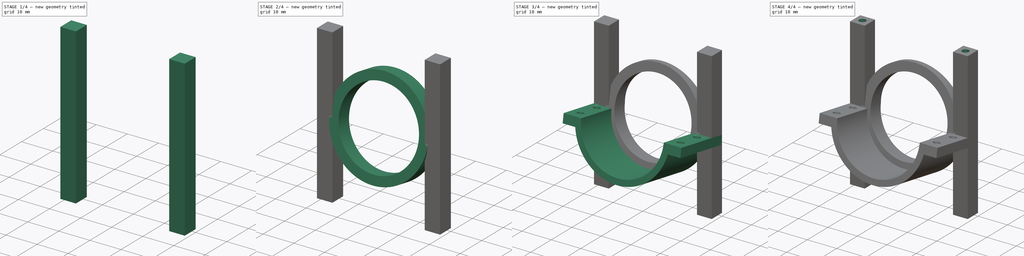
[diagram: build sequence overview — one tinted view per stage of 4, left to right]
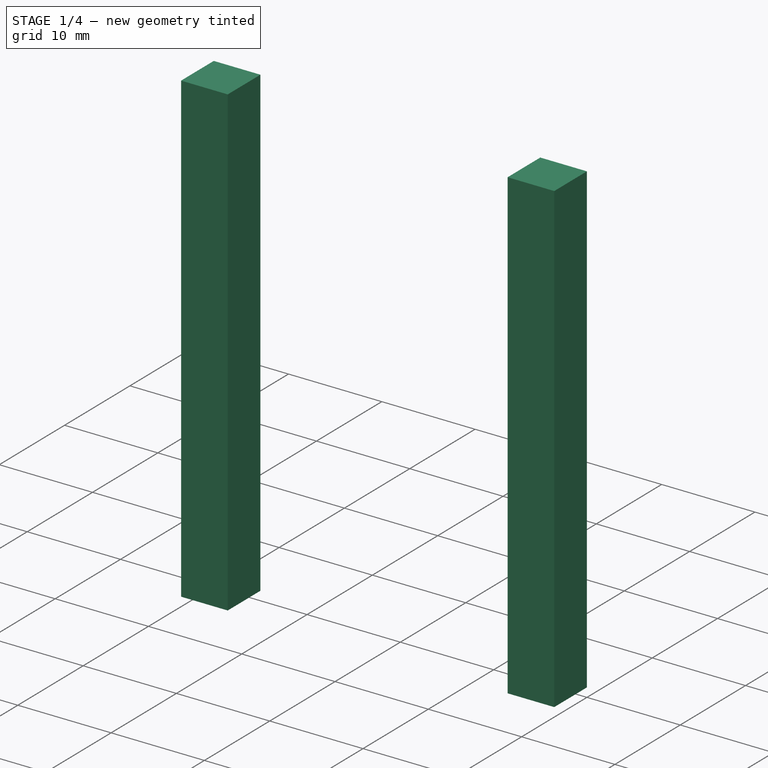
[diagram: stage 1 of 4 — iso view after this stage's code; geometry added in this stage tinted green]
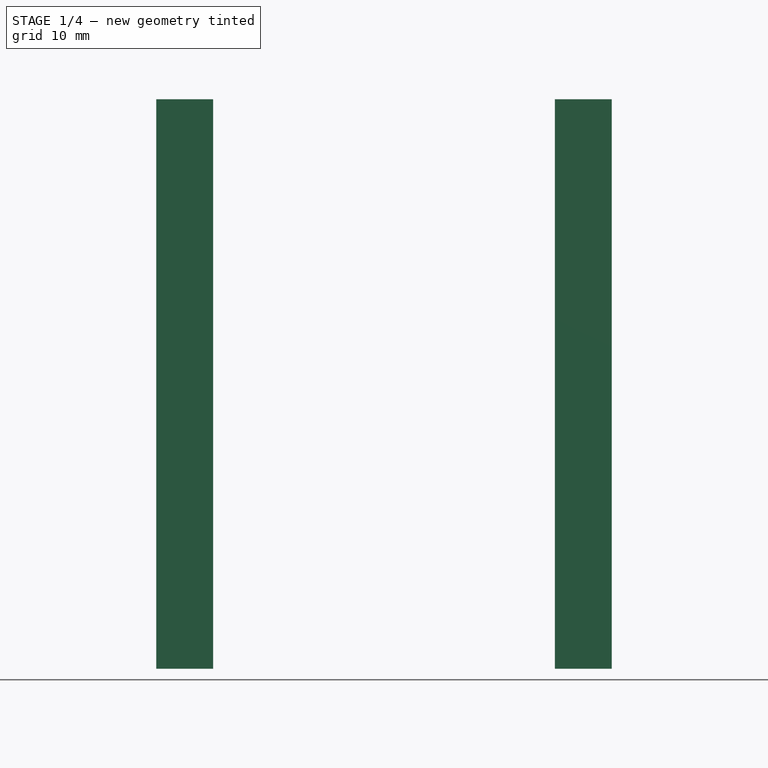
[diagram: stage 1 of 4 — front view after this stage's code; geometry added in this stage tinted green]
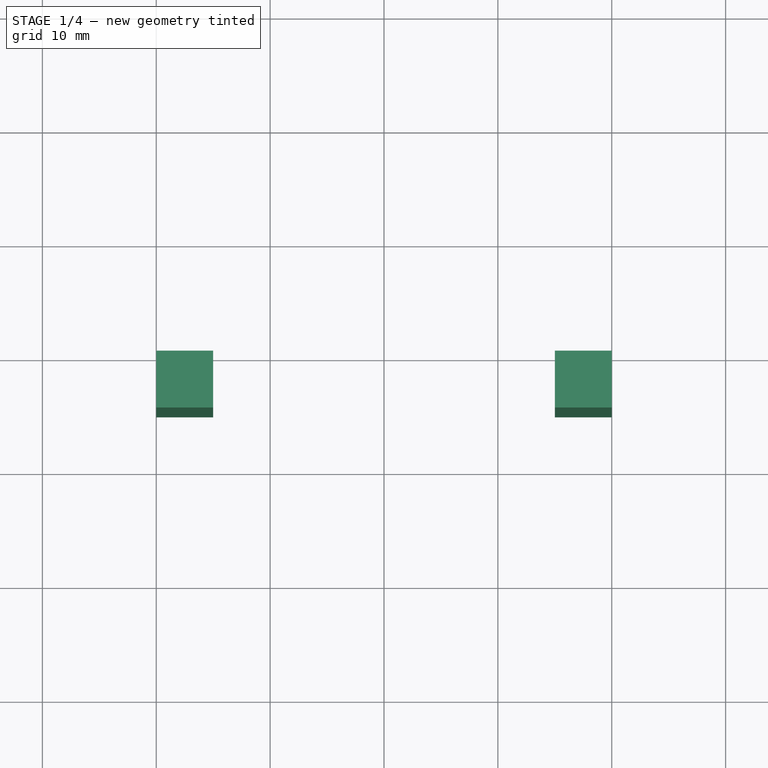
[diagram: stage 1 of 4 — top view after this stage's code; geometry added in this stage tinted green]
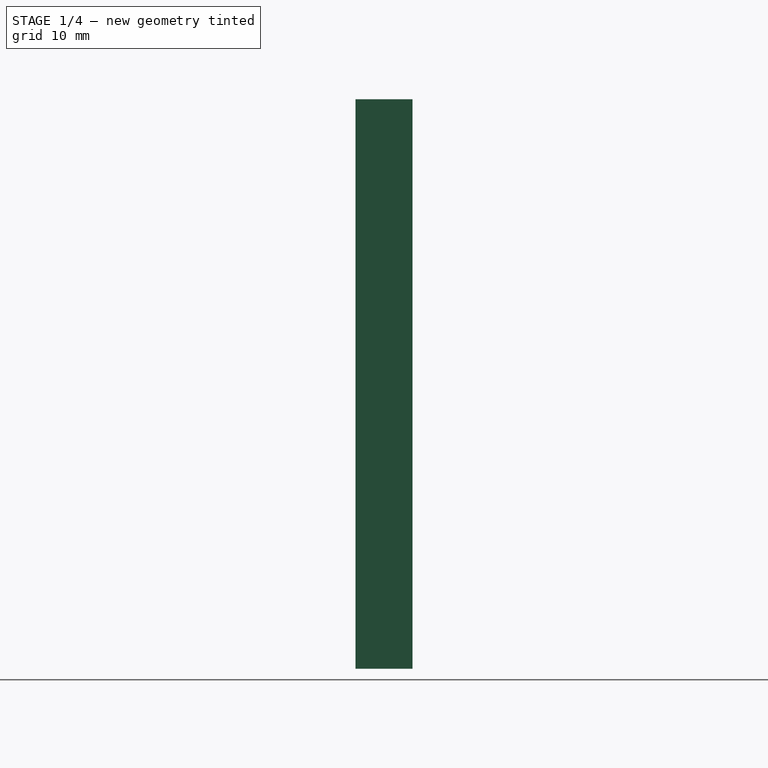
[diagram: stage 1 of 4 — right view after this stage's code; geometry added in this stage tinted green]
FCSTD DOCUMENT  (FreeCAD 0.15R4671 (Git))
Label: H_hub
License: All rights reserved
LicenseURL: http://en.wikipedia.org/wiki/All_rights_reserved
objects: Sketcher::SketchObject×5, PartDesign::Pocket×4, Part::Box×2, Part::MultiFuse×2, Part::Cylinder×1, PartDesign::Pad×1
note: 20 computed .brp shape members not serialized (recipe doc carries the construction recipe); baked Part::Feature solids carry a one-line shape summary decoded from their .brp

FEATURE [Part::Box] Box  label="Cube"
  Height = 50
  Length = 5
  Placement = pos=(15,-5,-25) rot=(0,0,1;0rad)
  Width = 5
FEATURE [Part::Box] Box001  label="Cube001"
  Height = 50
  Length = 5
  Placement = pos=(-20,-5,-25) rot=(0,0,1;0rad)
  Width = 5
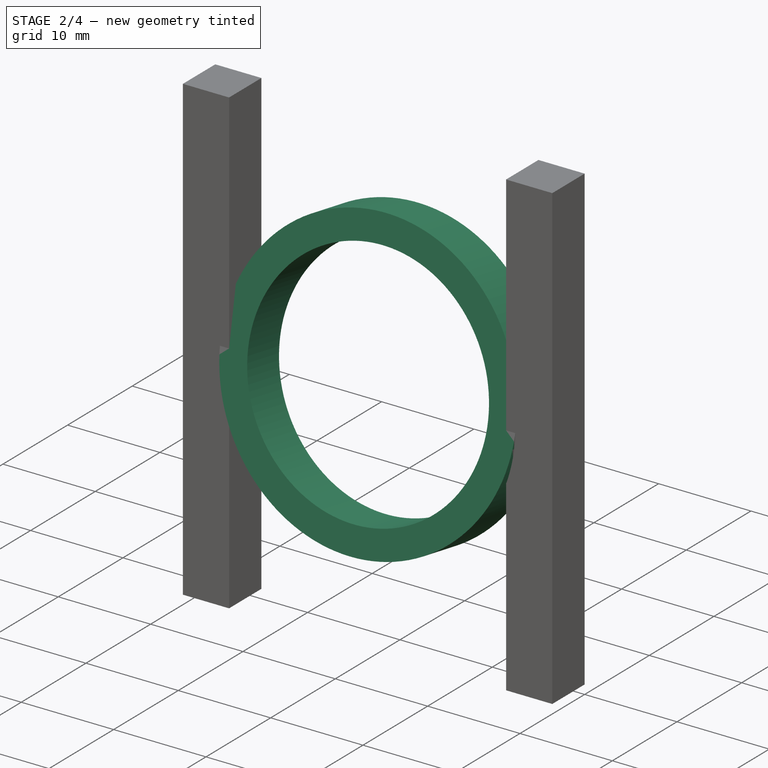
[diagram: stage 2 of 4 — iso view after this stage's code; geometry added in this stage tinted green]
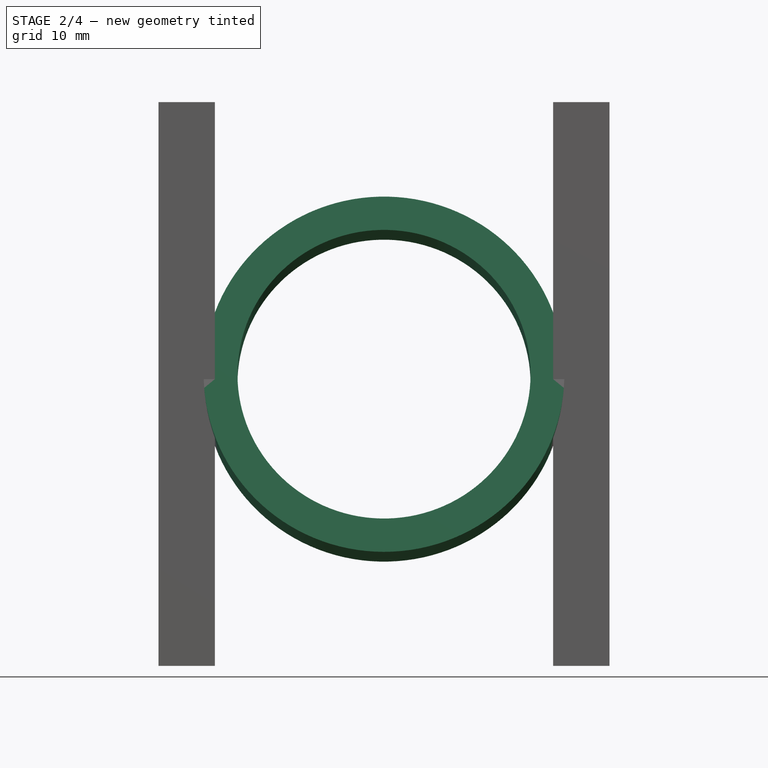
[diagram: stage 2 of 4 — front view after this stage's code; geometry added in this stage tinted green]
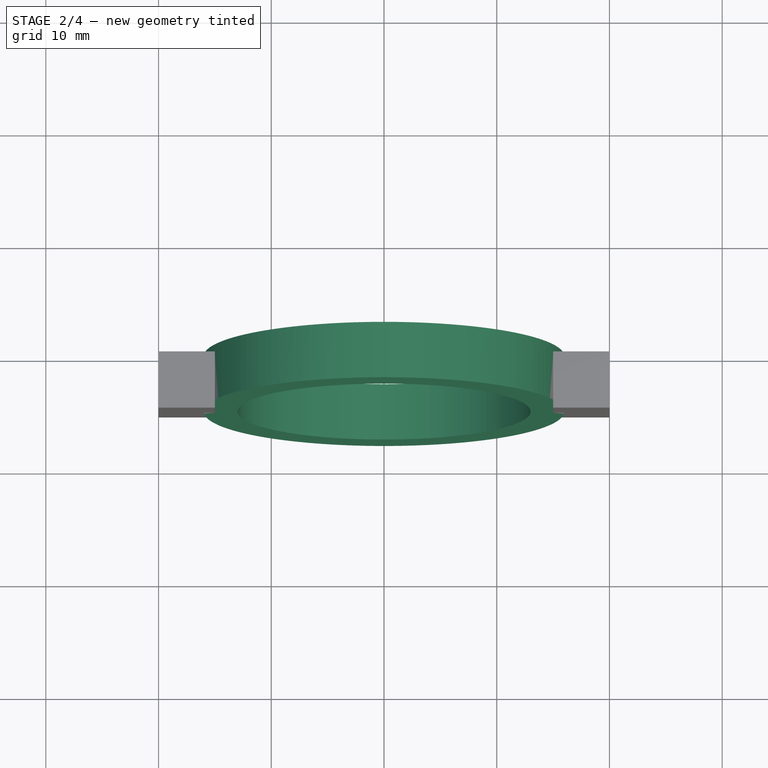
[diagram: stage 2 of 4 — top view after this stage's code; geometry added in this stage tinted green]
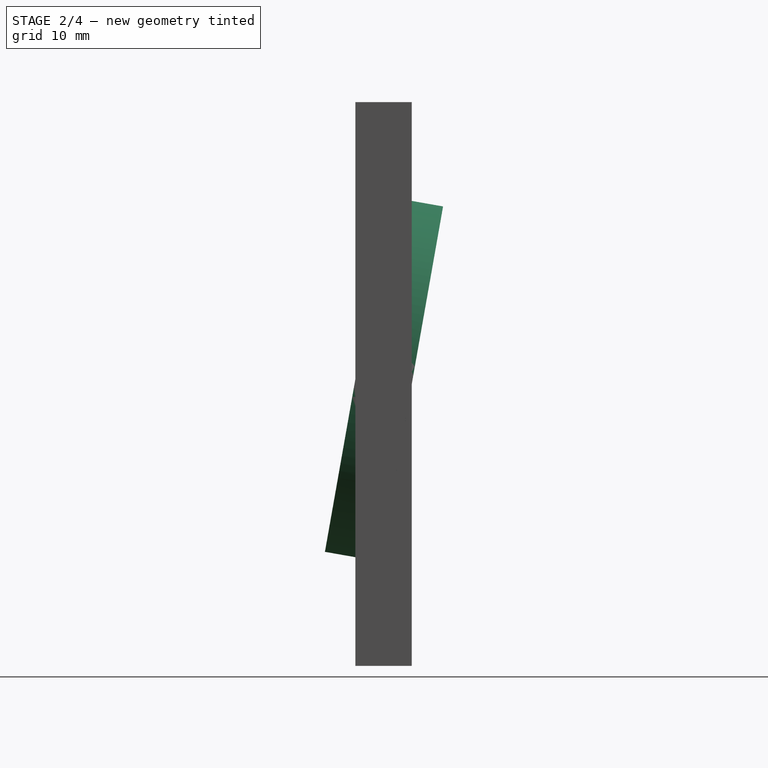
[diagram: stage 2 of 4 — right view after this stage's code; geometry added in this stage tinted green]
FEATURE [Part::Cylinder] Cylinder
  Angle = 360
  Height = 5
  Placement = pos=(0,0,0) rot=(1,0,0;1.39626rad)
  Radius = 16
FEATURE [Part::MultiFuse] Fusion
  Shapes = -> [Cylinder,Box,Box001]
FEATURE [Sketcher::SketchObject] Sketch
  Placement = pos=(0,-4.92404,0.868241) rot=(1,0,0;1.39626rad)
  Support = -> Fusion [Face8]
  sketch-geometry (1):
    g0: Circle CenterX=0 CenterY=0 CenterZ=0 NormalX=0 NormalY=0 NormalZ=1 Radius=13
  constraints (2):
    c: Coincident(g0,g-1)
    c: Radius(g0) = 13
FEATURE [PartDesign::Pocket] Pocket
  Length = 5
  Sketch = -> Sketch
  Type = 1
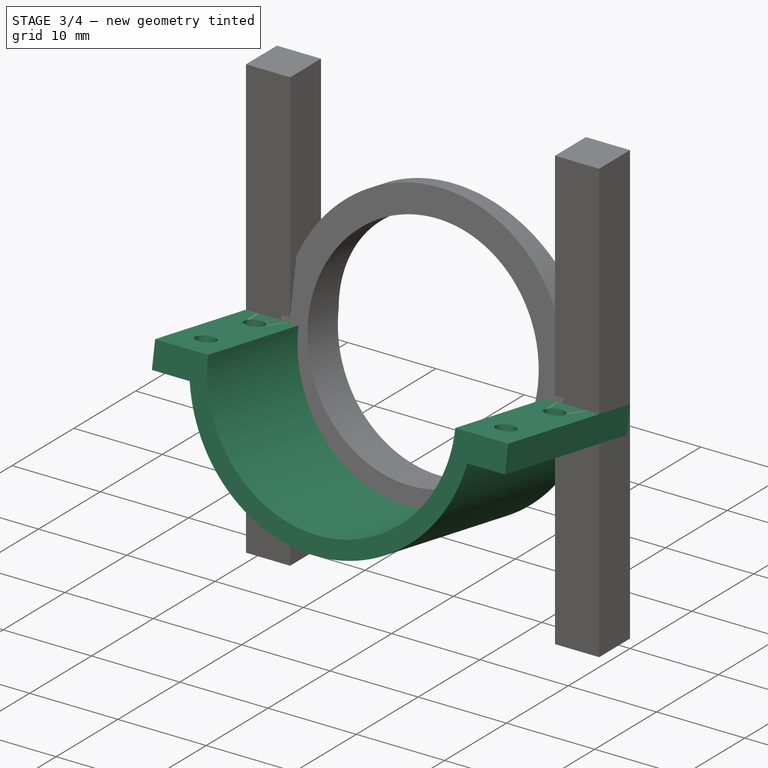
[diagram: stage 3 of 4 — iso view after this stage's code; geometry added in this stage tinted green]
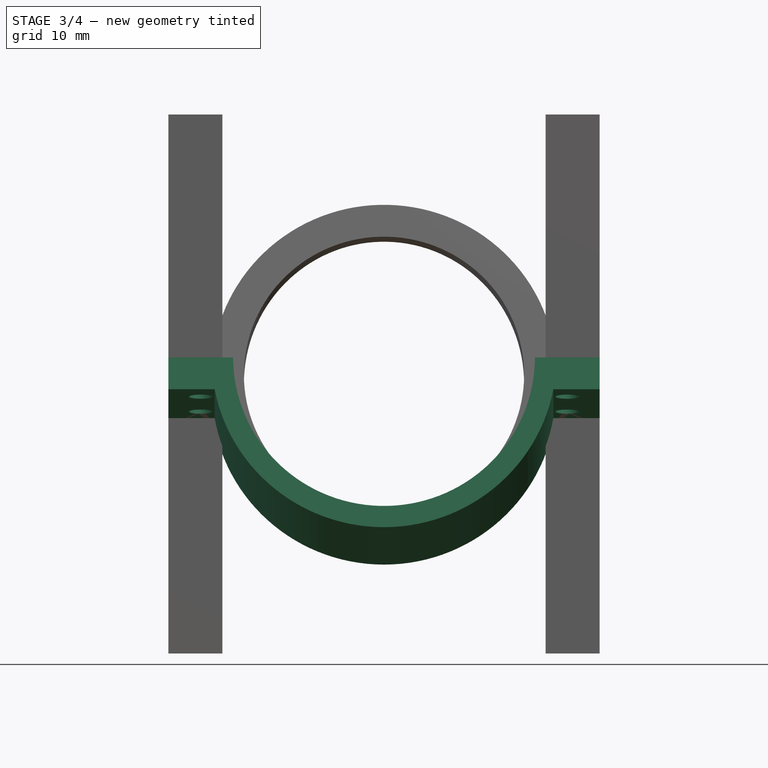
[diagram: stage 3 of 4 — front view after this stage's code; geometry added in this stage tinted green]
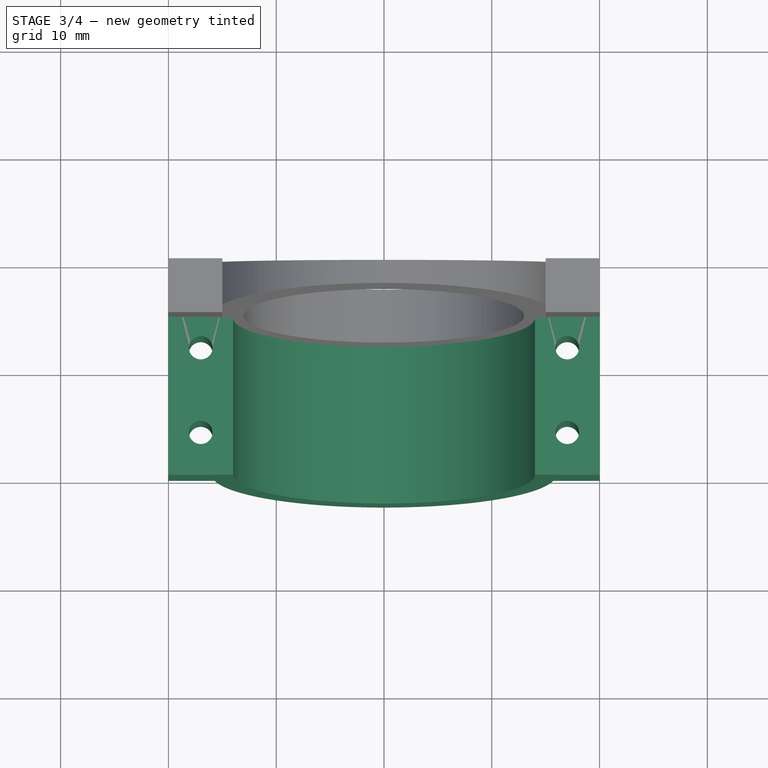
[diagram: stage 3 of 4 — top view after this stage's code; geometry added in this stage tinted green]
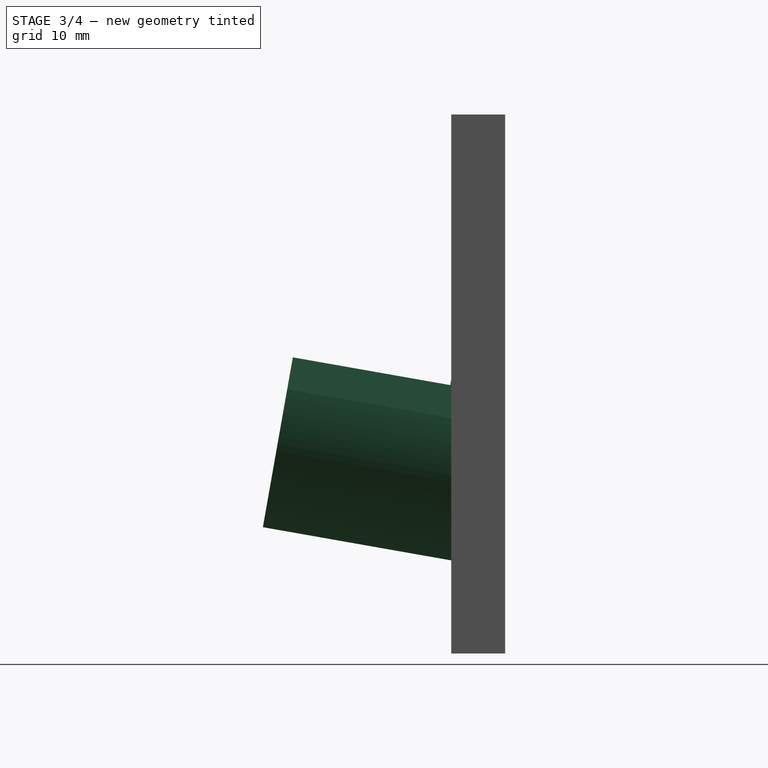
[diagram: stage 3 of 4 — right view after this stage's code; geometry added in this stage tinted green]
FEATURE [Sketcher::SketchObject] Sketch001  label="Profile"
  Placement = pos=(0,0,-1) rot=(1,0,0;1.39626rad)
  sketch-geometry (8):
    g0: LineSegment StartX=-15.7162 StartY=-3 StartZ=0 EndX=-20 EndY=-3 EndZ=0
    g1: LineSegment StartX=-20 StartY=-3 StartZ=0 EndX=-20 EndY=-3e-12 EndZ=0
    g2: LineSegment StartX=20 StartY=0 StartZ=0 EndX=20 EndY=-3 EndZ=0
    g3: LineSegment StartX=20 StartY=-3 StartZ=0 EndX=15.7162 EndY=-3 EndZ=0
    g4: ArcOfCircle CenterX=0 CenterY=0 CenterZ=0 NormalX=0 NormalY=0 NormalZ=1 Radius=16 StartAngle=3.33021 EndAngle=6.09457
    g5: ArcOfCircle CenterX=0 CenterY=0 CenterZ=0 NormalX=0 NormalY=0 NormalZ=1 Radius=14 StartAngle=3.14159 EndAngle=6.28319
    g6: LineSegment StartX=-20 StartY=-3e-12 StartZ=0 EndX=-14 EndY=-3e-12 EndZ=0
    g7: LineSegment StartX=14 StartY=6e-12 StartZ=0 EndX=20 EndY=0 EndZ=0
  constraints (23):
    c: Horizontal(g0)
    c: Coincident(g0,g1)
    c: PointOnObject(g1,g-1)
    c: Vertical(g1)
    c: Vertical(g2)
    c: Coincident(g2,g3)
    c: Horizontal(g3)
    c: Symmetric(g1,g2,g-2)
    c: Symmetric(g0,g3,g-2)
    c: Distance(g1) = 3
    c: Coincident(g4,g0)
    c: Coincident(g4,g3)
    c: Coincident(g5,g-1)
    c: Radius(g5) = 14
    c: Coincident(g6,g1)
    c: Coincident(g6,g5)
    c: Horizontal(g6)
    c: PointOnObject(g7,g-1)
    c: Coincident(g7,g2)
    c: DistanceX(g-1,g1) = -20
    c: Radius(g4) = 16
    c: Coincident(g4,g-1)
    c: Coincident(g5,g7)
FEATURE [PartDesign::Pad] Pad  label="PipeBed"
  Length = 20
  Length2 = 100
  Placement = pos=(0,0,-1) rot=(1,0,0;1.39626rad)
  Sketch = -> Sketch001
  Type = 0
FEATURE [Sketcher::SketchObject] Sketch002  label="Holes"
  Placement = pos=(0,3e-12,-1) rot=(0,0.087156,0.996195;3.14159rad)
  Support = -> Pad [Face5]
  sketch-geometry (8):
    g0: LineSegment [constr] StartX=-17 StartY=16 StartZ=0 EndX=17 EndY=16 EndZ=0
    g1: LineSegment [constr] StartX=17 StartY=16 StartZ=0 EndX=17 EndY=8 EndZ=0
    g2: LineSegment [constr] StartX=17 StartY=8 StartZ=0 EndX=-17 EndY=8 EndZ=0
    g3: LineSegment [constr] StartX=-17 StartY=8 StartZ=0 EndX=-17 EndY=16 EndZ=0
    g4: Circle CenterX=-17 CenterY=16 CenterZ=0 NormalX=0 NormalY=0 NormalZ=1 Radius=1.1
    g5: Circle CenterX=-17 CenterY=8 CenterZ=0 NormalX=0 NormalY=0 NormalZ=1 Radius=1.1
    g6: Circle CenterX=17 CenterY=16 CenterZ=0 NormalX=0 NormalY=0 NormalZ=1 Radius=1.1
    g7: Circle CenterX=17 CenterY=8 CenterZ=0 NormalX=0 NormalY=0 NormalZ=1 Radius=1.1
  constraints (20):
    c: Coincident(g0,g1)
    c: Coincident(g1,g2)
    c: Coincident(g2,g3)
    c: Coincident(g3,g0)
    c: Horizontal(g0)
    c: Horizontal(g2)
    c: Vertical(g1)
    c: Vertical(g3)
    c: Symmetric(g0,g0,g-2)
    c: DistanceY(g-1,g2) = 8
    c: Distance(g2) = 34
    c: Coincident(g4,g0)
    c: Coincident(g5,g2)
    c: Coincident(g6,g0)
    c: Coincident(g7,g1)
    c: Equal(g6,g7)
    c: Equal(g7,g5)
    c: Equal(g5,g4)
    c: Radius(g4) = 1.1
    c: Distance(g3) = 8
FEATURE [PartDesign::Pocket] Pocket001  label="FastenerHolesBracket"
  Length = 5
  Placement = pos=(0,0,-1) rot=(1,0,0;1.39626rad)
  Sketch = -> Sketch002
  Type = 1
FEATURE [Sketcher::SketchObject] Sketch003
  Placement = pos=(0,0,25) rot=(0,0,1;0rad)
  Support = -> Pocket [Face3]
  sketch-geometry (4):
    g0: LineSegment StartX=-20 StartY=0 StartZ=0 EndX=20 EndY=0 EndZ=0
    g1: LineSegment StartX=20 StartY=0 StartZ=0 EndX=20 EndY=3.2 EndZ=0
    g2: LineSegment StartX=20 StartY=3.2 StartZ=0 EndX=-20 EndY=3.2 EndZ=0
    g3: LineSegment StartX=-20 StartY=3.2 StartZ=0 EndX=-20 EndY=0 EndZ=0
  constraints (12):
    c: Coincident(g0,g1)
    c: Coincident(g1,g2)
    c: Coincident(g2,g3)
    c: Coincident(g3,g0)
    c: Horizontal(g0)
    c: Horizontal(g2)
    c: Vertical(g1)
    c: Vertical(g3)
    c: Distance(g2) = 40
    c: Distance(g1) = 3.2
    c: PointOnObject(g0,g-1)
    c: Symmetric(g0,g0,g-2)
FEATURE [PartDesign::Pocket] Pocket002
  Length = 5
  Sketch = -> Sketch003
  Type = 1
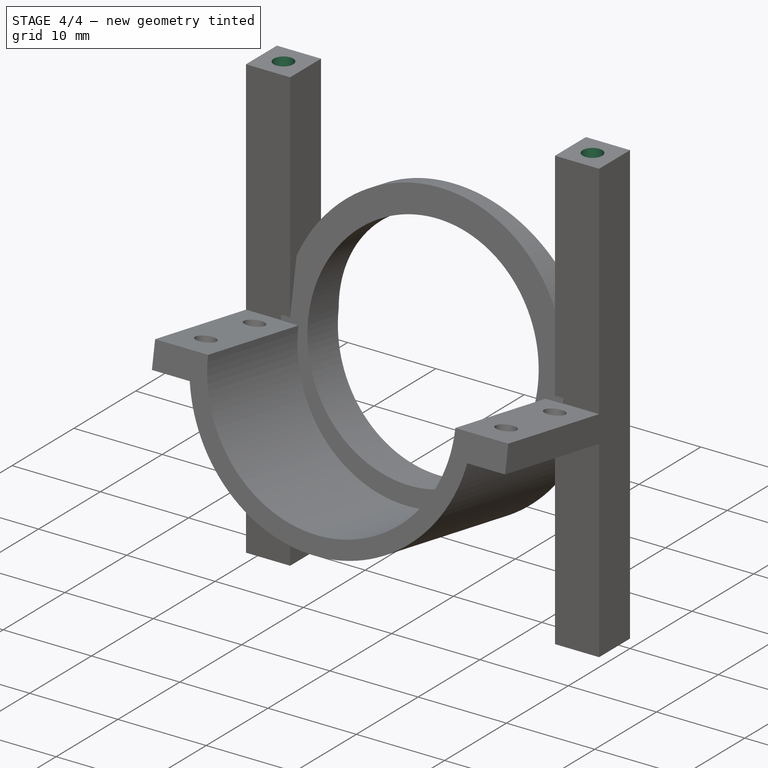
[diagram: stage 4 of 4 — iso view after this stage's code; geometry added in this stage tinted green]
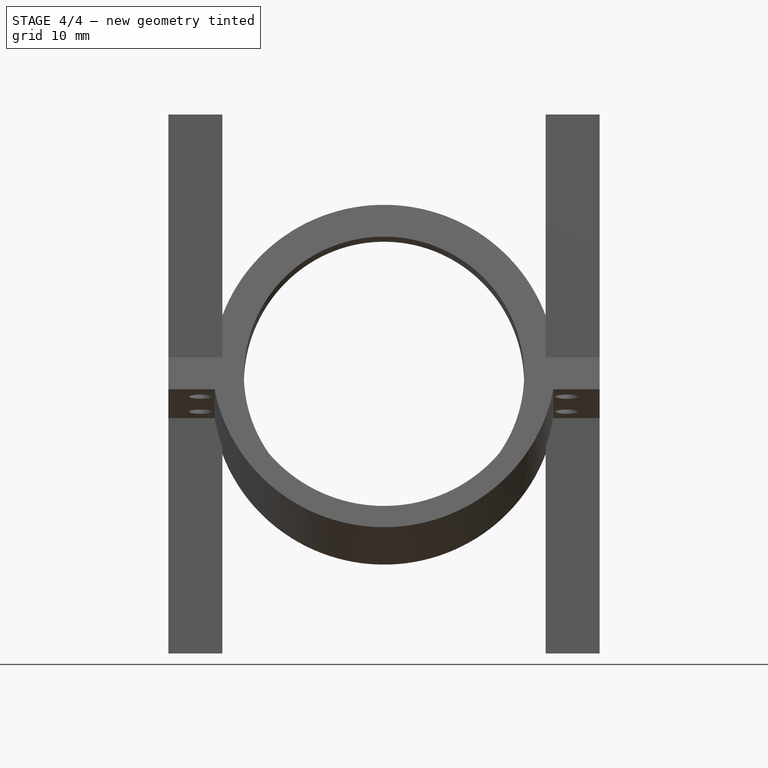
[diagram: stage 4 of 4 — front view after this stage's code; geometry added in this stage tinted green]
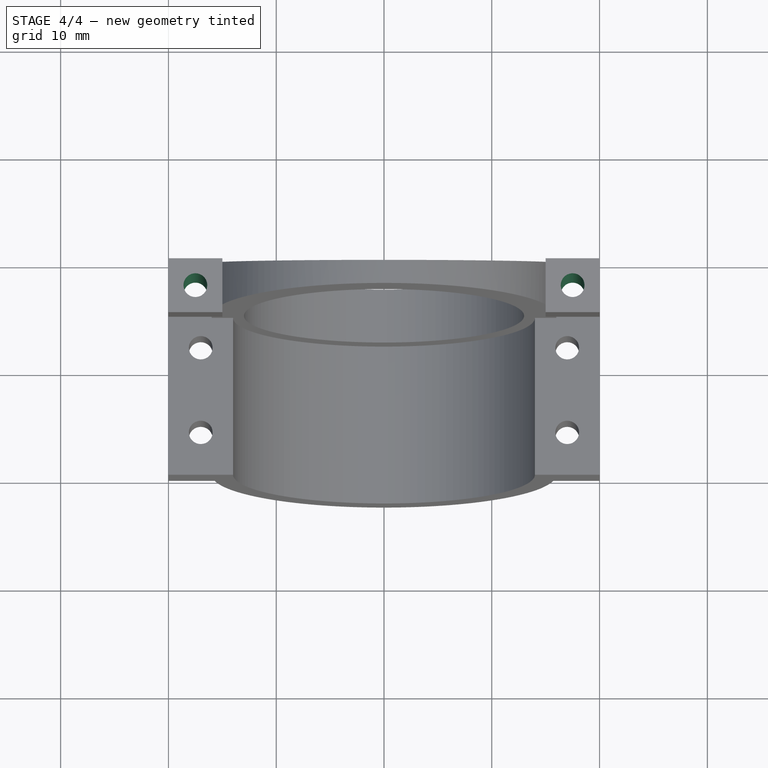
[diagram: stage 4 of 4 — top view after this stage's code; geometry added in this stage tinted green]
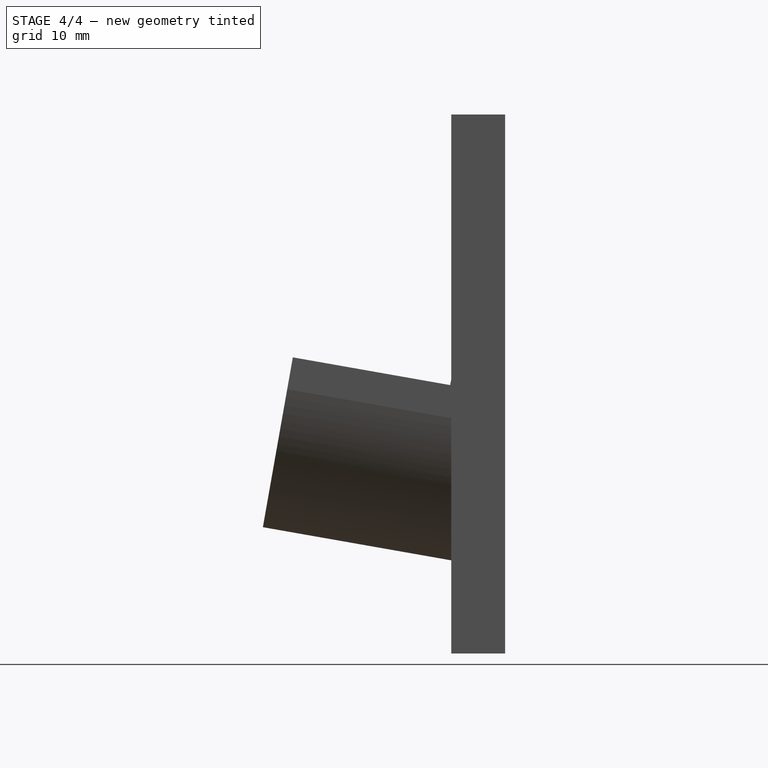
[diagram: stage 4 of 4 — right view after this stage's code; geometry added in this stage tinted green]
FEATURE [Part::MultiFuse] Fusion001
  Shapes = -> [Pocket001,Pocket002]
FEATURE [Sketcher::SketchObject] Sketch004
  ExternalGeometry = -> [Fusion001]
  Placement = pos=(0,0,25) rot=(0,0,1;0rad)
  Support = -> Fusion001 [Face30]
  sketch-geometry (4):
    g0: LineSegment [constr] StartX=-20 StartY=0 StartZ=0 EndX=-15 EndY=-5 EndZ=0
    g1: LineSegment [constr] StartX=-15 StartY=0 StartZ=0 EndX=-20 EndY=-5 EndZ=0
    g2: Circle CenterX=-17.5 CenterY=-2.5 CenterZ=0 NormalX=0 NormalY=0 NormalZ=1 Radius=1.1
    g3: Circle CenterX=17.5 CenterY=-2.5 CenterZ=0 NormalX=0 NormalY=0 NormalZ=1 Radius=1.1
  constraints (9):
    c: Coincident(g0,g-4)
    c: Coincident(g0,g-3)
    c: Coincident(g1,g-3)
    c: Coincident(g1,g-4)
    c: PointOnObject(g2,g0)
    c: PointOnObject(g2,g1)
    c: Radius(g2) = 1.1
    c: Symmetric(g3,g2,g-2)
    c: Equal(g3,g2)
FEATURE [PartDesign::Pocket] Pocket003
  Length = 5
  Sketch = -> Sketch004
  Type = 1
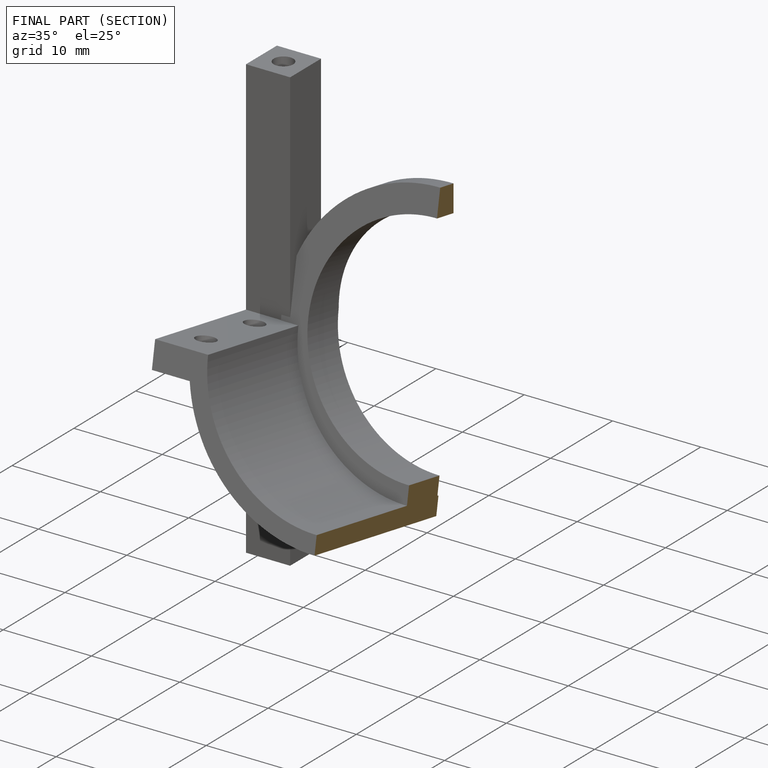
[diagram: finished part — half-section view (interior)]
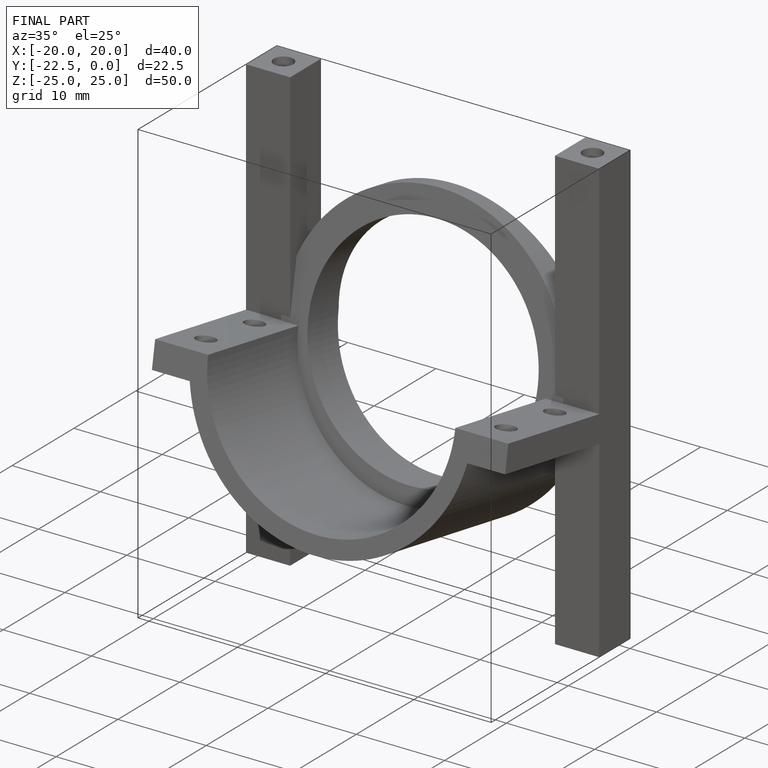
[diagram: finished part — iso view with bounding-box wireframe]
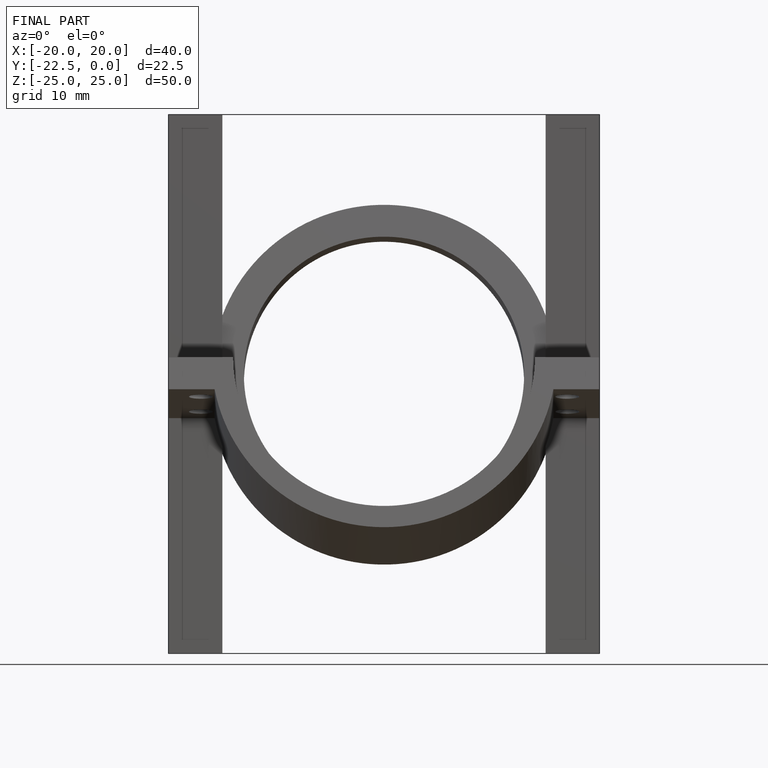
[diagram: finished part — front view with bounding-box wireframe]
